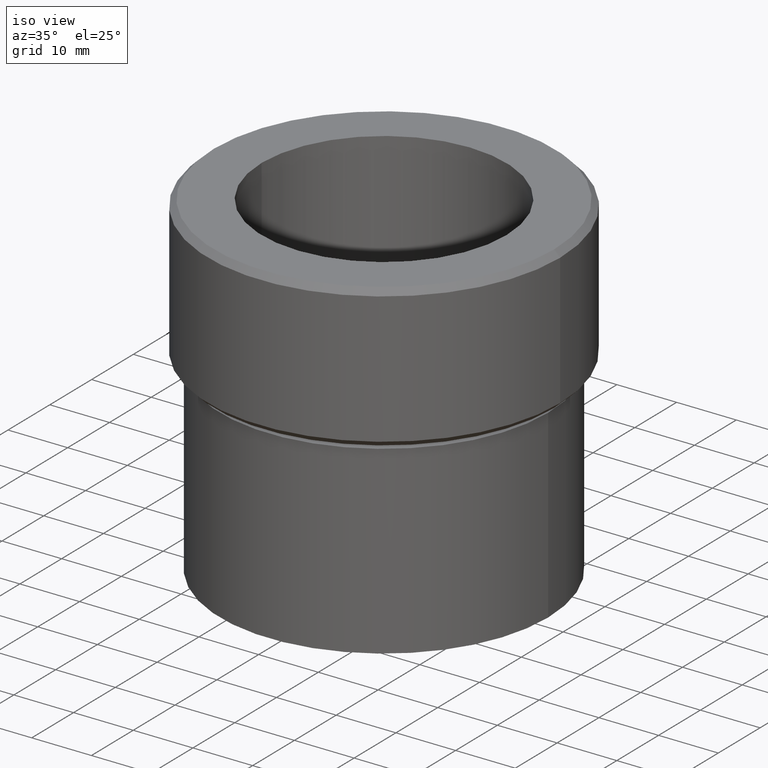
[diagram: clean part render]
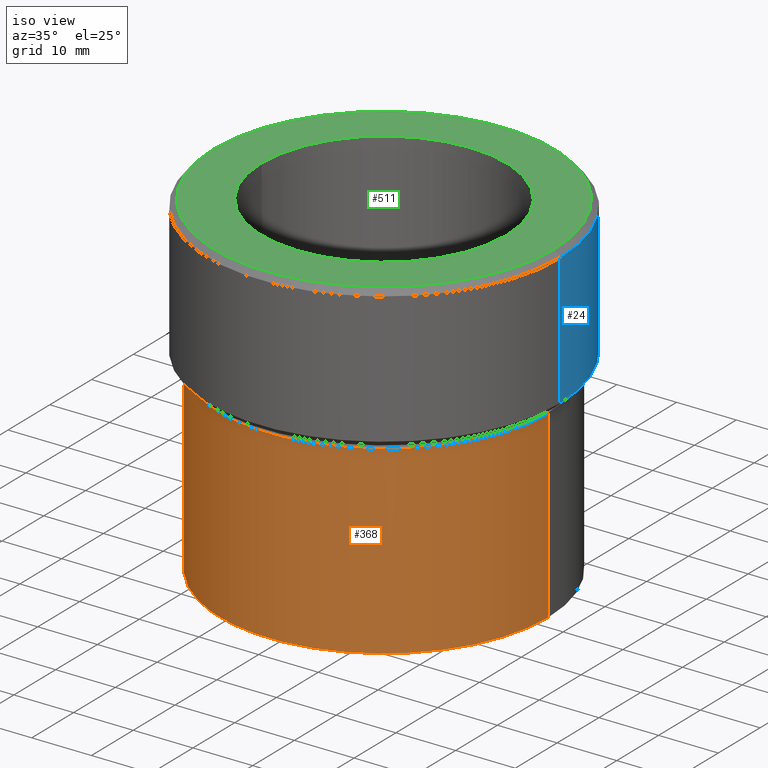
[diagram: same view with three faces highlighted in distinct colors, each labeled with its STEP entity id]
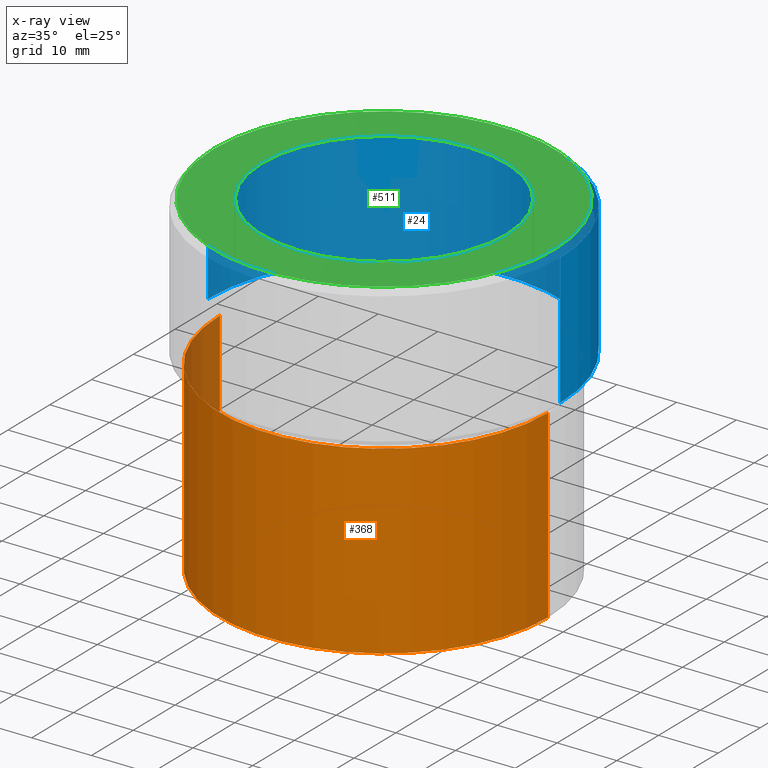
[diagram: x-ray of the same camera — body ghosted, the three highlighted faces saturated]
A machine part, iso view with three faces highlighted in distinct colors.
The next image is the same camera in x-ray (body ghosted, the three faces saturated) — at least one of them is partly hidden behind the body in this view.
Their STEP definitions:

[orange] entity #368 — the highlighted cylindrical surface (partial cylindrical patch) has radius 27.5 mm, axis along (-0, -0, 1).
#1 = DIRECTION ( 'NONE',  ( 1.000000000000000000, 0.000000000000000000, 0.000000000000000000 ) ) ;
#31 = EDGE_CURVE ( 'NONE', #129, #217, #383, .T. ) ;
#32 = CARTESIAN_POINT ( 'NONE',  ( 27.50000000000000355, 0.000000000000000000, 0.000000000000000000 ) ) ;
#57 = CIRCLE ( 'NONE', #191, 27.50000000000000355 ) ;
#60 = DIRECTION ( 'NONE',  ( -0.000000000000000000, -0.000000000000000000, 1.000000000000000000 ) ) ;
#61 = EDGE_LOOP ( 'NONE', ( #192, #490, #289, #256 ) ) ;
#68 = CARTESIAN_POINT ( 'NONE',  ( -27.50000000000000355, 3.367778697655222096E-15, -24.99999999999999645 ) ) ;
#84 = AXIS2_PLACEMENT_3D ( 'NONE', #450, #128, #326 ) ;
#128 = DIRECTION ( 'NONE',  ( -0.000000000000000000, -0.000000000000000000, 1.000000000000000000 ) ) ;
#129 = VERTEX_POINT ( 'NONE', #303 ) ;
#150 = FACE_OUTER_BOUND ( 'NONE', #61, .T. ) ;
#166 = LINE ( 'NONE', #32, #351 ) ;
#191 = AXIS2_PLACEMENT_3D ( 'NONE', #410, #529, #1 ) ;
#192 = ORIENTED_EDGE ( 'NONE', *, *, #31, .F. ) ;
#204 = AXIS2_PLACEMENT_3D ( 'NONE', #309, #60, #275 ) ;
#210 = CARTESIAN_POINT ( 'NONE',  ( 27.50000000000000711, 0.000000000000000000, -56.00000000000000711 ) ) ;
#217 = VERTEX_POINT ( 'NONE', #68 ) ;
#223 = DIRECTION ( 'NONE',  ( -0.000000000000000000, -0.000000000000000000, 1.000000000000000000 ) ) ;
#256 = ORIENTED_EDGE ( 'NONE', *, *, #488, .F. ) ;
#275 = DIRECTION ( 'NONE',  ( 1.000000000000000000, 0.000000000000000000, 0.000000000000000000 ) ) ;
#278 = EDGE_CURVE ( 'NONE', #129, #411, #389, .T. ) ;
#289 = ORIENTED_EDGE ( 'NONE', *, *, #433, .T. ) ;
#303 = CARTESIAN_POINT ( 'NONE',  ( -27.50000000000001066, 3.367778697655222885E-15, -56.00000000000000711 ) ) ;
#309 = CARTESIAN_POINT ( 'NONE',  ( 0.000000000000000000, 0.000000000000000000, -56.00000000000000711 ) ) ;
#310 = CYLINDRICAL_SURFACE ( 'NONE', #84, 27.50000000000000355 ) ;
#313 = VECTOR ( 'NONE', #223, 1000.000000000000000 ) ;
#326 = DIRECTION ( 'NONE',  ( 1.000000000000000000, 0.000000000000000000, 0.000000000000000000 ) ) ;
#351 = VECTOR ( 'NONE', #452, 1000.000000000000000 ) ;
#368 = ADVANCED_FACE ( 'NONE', ( #150 ), #310, .T. ) ;
#383 = LINE ( 'NONE', #508, #313 ) ;
#389 = CIRCLE ( 'NONE', #204, 27.50000000000000711 ) ;
#410 = CARTESIAN_POINT ( 'NONE',  ( 0.000000000000000000, 0.000000000000000000, -24.99999999999999645 ) ) ;
#411 = VERTEX_POINT ( 'NONE', #210 ) ;
#433 = EDGE_CURVE ( 'NONE', #411, #478, #166, .T. ) ;
#447 = CARTESIAN_POINT ( 'NONE',  ( 27.50000000000000355, 0.000000000000000000, -24.99999999999999645 ) ) ;
#450 = CARTESIAN_POINT ( 'NONE',  ( 0.000000000000000000, 0.000000000000000000, 0.000000000000000000 ) ) ;
#452 = DIRECTION ( 'NONE',  ( -0.000000000000000000, -0.000000000000000000, 1.000000000000000000 ) ) ;
#478 = VERTEX_POINT ( 'NONE', #447 ) ;
#488 = EDGE_CURVE ( 'NONE', #217, #478, #57, .T. ) ;
#490 = ORIENTED_EDGE ( 'NONE', *, *, #278, .T. ) ;
#508 = CARTESIAN_POINT ( 'NONE',  ( -27.50000000000000355, 3.367778697655222096E-15, 0.000000000000000000 ) ) ;
#529 = DIRECTION ( 'NONE',  ( -0.000000000000000000, -0.000000000000000000, 1.000000000000000000 ) ) ;

[blue] entity #24 — the highlighted cylindrical surface (partial cylindrical patch) has radius 29.5 mm, axis along (-0, -0, 1).
#24 = ADVANCED_FACE ( 'NONE', ( #260 ), #471, .T. ) ;
#55 = EDGE_CURVE ( 'NONE', #446, #325, #86, .T. ) ;
#58 = DIRECTION ( 'NONE',  ( -0.000000000000000000, -0.000000000000000000, 1.000000000000000000 ) ) ;
#66 = CIRCLE ( 'NONE', #159, 29.50000000000000000 ) ;
#75 = AXIS2_PLACEMENT_3D ( 'NONE', #257, #263, #342 ) ;
#82 = CARTESIAN_POINT ( 'NONE',  ( 29.50000000000000000, 0.000000000000000000, -22.99999999999999289 ) ) ;
#86 = CIRCLE ( 'NONE', #75, 29.50000000000000000 ) ;
#121 = DIRECTION ( 'NONE',  ( 1.000000000000000000, 0.000000000000000000, 0.000000000000000000 ) ) ;
#159 = AXIS2_PLACEMENT_3D ( 'NONE', #215, #291, #121 ) ;
#188 = LINE ( 'NONE', #349, #321 ) ;
#215 = CARTESIAN_POINT ( 'NONE',  ( 0.000000000000000000, 0.000000000000000000, -1.000000000000004441 ) ) ;
#226 = DIRECTION ( 'NONE',  ( 1.000000000000000000, 0.000000000000000000, 0.000000000000000000 ) ) ;
#237 = ORIENTED_EDGE ( 'NONE', *, *, #55, .T. ) ;
#242 = CARTESIAN_POINT ( 'NONE',  ( -29.50000000000000000, 3.612708057484691604E-15, -22.99999999999999289 ) ) ;
#252 = CARTESIAN_POINT ( 'NONE',  ( 29.50000000000000000, 0.000000000000000000, -1.000000000000004441 ) ) ;
#257 = CARTESIAN_POINT ( 'NONE',  ( 0.000000000000000000, 0.000000000000000000, -22.99999999999999289 ) ) ;
#260 = FACE_OUTER_BOUND ( 'NONE', #419, .T. ) ;
#263 = DIRECTION ( 'NONE',  ( -0.000000000000000000, -0.000000000000000000, 1.000000000000000000 ) ) ;
#265 = DIRECTION ( 'NONE',  ( -0.000000000000000000, -0.000000000000000000, 1.000000000000000000 ) ) ;
#291 = DIRECTION ( 'NONE',  ( 0.000000000000000000, 0.000000000000000000, -1.000000000000000000 ) ) ;
#321 = VECTOR ( 'NONE', #517, 1000.000000000000000 ) ;
#325 = VERTEX_POINT ( 'NONE', #242 ) ;
#336 = CARTESIAN_POINT ( 'NONE',  ( -29.50000000000000000, 3.612708057484691604E-15, 0.000000000000000000 ) ) ;
#342 = DIRECTION ( 'NONE',  ( -1.000000000000000000, 0.000000000000000000, 0.000000000000000000 ) ) ;
#349 = CARTESIAN_POINT ( 'NONE',  ( 29.50000000000000000, 0.000000000000000000, 0.000000000000000000 ) ) ;
#361 = EDGE_CURVE ( 'NONE', #446, #415, #188, .T. ) ;
#375 = CARTESIAN_POINT ( 'NONE',  ( -29.50000000000000000, 3.612708057484691604E-15, -1.000000000000004441 ) ) ;
#377 = EDGE_CURVE ( 'NONE', #435, #415, #66, .T. ) ;
#396 = ORIENTED_EDGE ( 'NONE', *, *, #505, .T. ) ;
#406 = ORIENTED_EDGE ( 'NONE', *, *, #377, .T. ) ;
#415 = VERTEX_POINT ( 'NONE', #252 ) ;
#419 = EDGE_LOOP ( 'NONE', ( #237, #396, #406, #458 ) ) ;
#435 = VERTEX_POINT ( 'NONE', #375 ) ;
#446 = VERTEX_POINT ( 'NONE', #82 ) ;
#458 = ORIENTED_EDGE ( 'NONE', *, *, #361, .F. ) ;
#468 = LINE ( 'NONE', #336, #480 ) ;
#469 = CARTESIAN_POINT ( 'NONE',  ( 0.000000000000000000, 0.000000000000000000, 0.000000000000000000 ) ) ;
#471 = CYLINDRICAL_SURFACE ( 'NONE', #476, 29.50000000000000000 ) ;
#476 = AXIS2_PLACEMENT_3D ( 'NONE', #469, #58, #226 ) ;
#480 = VECTOR ( 'NONE', #265, 1000.000000000000000 ) ;
#505 = EDGE_CURVE ( 'NONE', #325, #435, #468, .T. ) ;
#517 = DIRECTION ( 'NONE',  ( -0.000000000000000000, -0.000000000000000000, 1.000000000000000000 ) ) ;

[green] entity #511 — the highlighted planar face has unit normal (0, -0, 1).
#17 = FACE_BOUND ( 'NONE', #399, .T. ) ;
#33 = VERTEX_POINT ( 'NONE', #56 ) ;
#39 = CIRCLE ( 'NONE', #181, 28.49999999999998224 ) ;
#40 = CARTESIAN_POINT ( 'NONE',  ( -28.49999999999998224, 0.000000000000000000, 0.000000000000000000 ) ) ;
#43 = ORIENTED_EDGE ( 'NONE', *, *, #456, .T. ) ;
#47 = DIRECTION ( 'NONE',  ( 1.000000000000000000, 0.000000000000000000, 0.000000000000000000 ) ) ;
#48 = CIRCLE ( 'NONE', #509, 20.50000000000000000 ) ;
#54 = DIRECTION ( 'NONE',  ( 1.000000000000000000, 0.000000000000000000, 0.000000000000000000 ) ) ;
#56 = CARTESIAN_POINT ( 'NONE',  ( 28.49999999999998224, 3.551475717527322452E-15, 0.000000000000000000 ) ) ;
#95 = CIRCLE ( 'NONE', #467, 28.49999999999998224 ) ;
#97 = FACE_OUTER_BOUND ( 'NONE', #330, .T. ) ;
#115 = DIRECTION ( 'NONE',  ( -0.000000000000000000, -0.000000000000000000, 1.000000000000000000 ) ) ;
#160 = CARTESIAN_POINT ( 'NONE',  ( 0.000000000000000000, 0.000000000000000000, 0.000000000000000000 ) ) ;
#173 = CARTESIAN_POINT ( 'NONE',  ( 0.000000000000000000, 0.000000000000000000, 0.000000000000000000 ) ) ;
#181 = AXIS2_PLACEMENT_3D ( 'NONE', #160, #324, #408 ) ;
#185 = CIRCLE ( 'NONE', #254, 20.50000000000000000 ) ;
#196 = DIRECTION ( 'NONE',  ( 1.000000000000000000, 0.000000000000000000, 0.000000000000000000 ) ) ;
#213 = CARTESIAN_POINT ( 'NONE',  ( -20.50000000000000000, 2.510525938252074481E-15, 0.000000000000000000 ) ) ;
#254 = AXIS2_PLACEMENT_3D ( 'NONE', #320, #315, #270 ) ;
#270 = DIRECTION ( 'NONE',  ( 1.000000000000000000, 0.000000000000000000, 0.000000000000000000 ) ) ;
#290 = EDGE_CURVE ( 'NONE', #437, #496, #185, .T. ) ;
#315 = DIRECTION ( 'NONE',  ( -0.000000000000000000, -0.000000000000000000, 1.000000000000000000 ) ) ;
#320 = CARTESIAN_POINT ( 'NONE',  ( 0.000000000000000000, 0.000000000000000000, 0.000000000000000000 ) ) ;
#324 = DIRECTION ( 'NONE',  ( -0.000000000000000000, -0.000000000000000000, 1.000000000000000000 ) ) ;
#330 = EDGE_LOOP ( 'NONE', ( #43, #409 ) ) ;
#331 = CARTESIAN_POINT ( 'NONE',  ( 0.000000000000000000, 0.000000000000000000, 0.000000000000000000 ) ) ;
#345 = EDGE_CURVE ( 'NONE', #33, #493, #95, .T. ) ;
#347 = PLANE ( 'NONE',  #464 ) ;
#376 = ORIENTED_EDGE ( 'NONE', *, *, #290, .F. ) ;
#399 = EDGE_LOOP ( 'NONE', ( #376, #499 ) ) ;
#408 = DIRECTION ( 'NONE',  ( 1.000000000000000000, 0.000000000000000000, 0.000000000000000000 ) ) ;
#409 = ORIENTED_EDGE ( 'NONE', *, *, #345, .T. ) ;
#437 = VERTEX_POINT ( 'NONE', #494 ) ;
#438 = CARTESIAN_POINT ( 'NONE',  ( 0.000000000000000000, 0.000000000000000000, 0.000000000000000000 ) ) ;
#456 = EDGE_CURVE ( 'NONE', #493, #33, #39, .T. ) ;
#464 = AXIS2_PLACEMENT_3D ( 'NONE', #173, #465, #54 ) ;
#465 = DIRECTION ( 'NONE',  ( 0.000000000000000000, -0.000000000000000000, 1.000000000000000000 ) ) ;
#467 = AXIS2_PLACEMENT_3D ( 'NONE', #438, #115, #196 ) ;
#493 = VERTEX_POINT ( 'NONE', #40 ) ;
#494 = CARTESIAN_POINT ( 'NONE',  ( 20.50000000000000000, 0.000000000000000000, 0.000000000000000000 ) ) ;
#496 = VERTEX_POINT ( 'NONE', #213 ) ;
#498 = DIRECTION ( 'NONE',  ( -0.000000000000000000, -0.000000000000000000, 1.000000000000000000 ) ) ;
#499 = ORIENTED_EDGE ( 'NONE', *, *, #500, .F. ) ;
#500 = EDGE_CURVE ( 'NONE', #496, #437, #48, .T. ) ;
#509 = AXIS2_PLACEMENT_3D ( 'NONE', #331, #498, #47 ) ;
#511 = ADVANCED_FACE ( 'NONE', ( #17, #97 ), #347, .T. ) ;